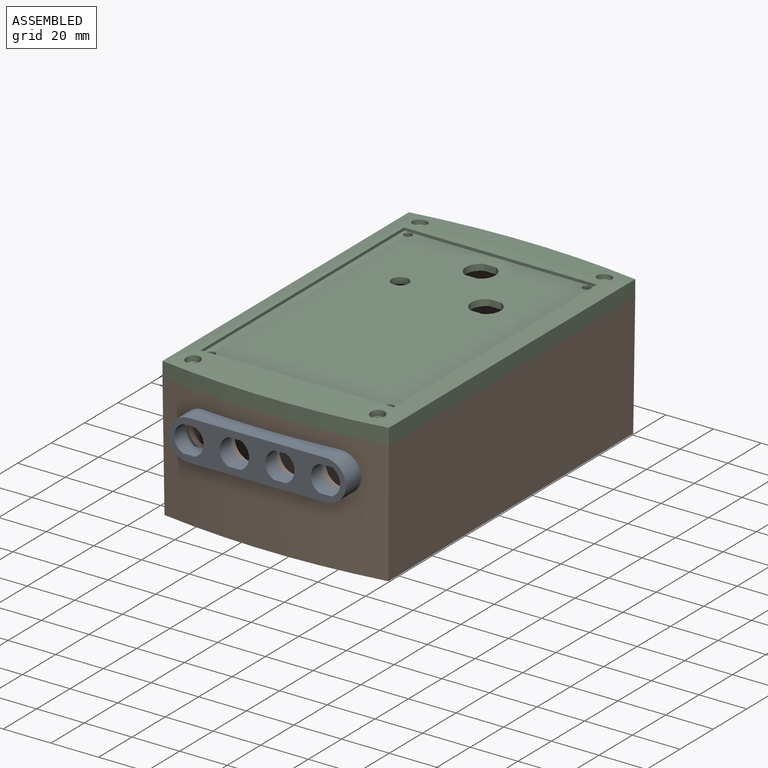
[diagram: assembled view]
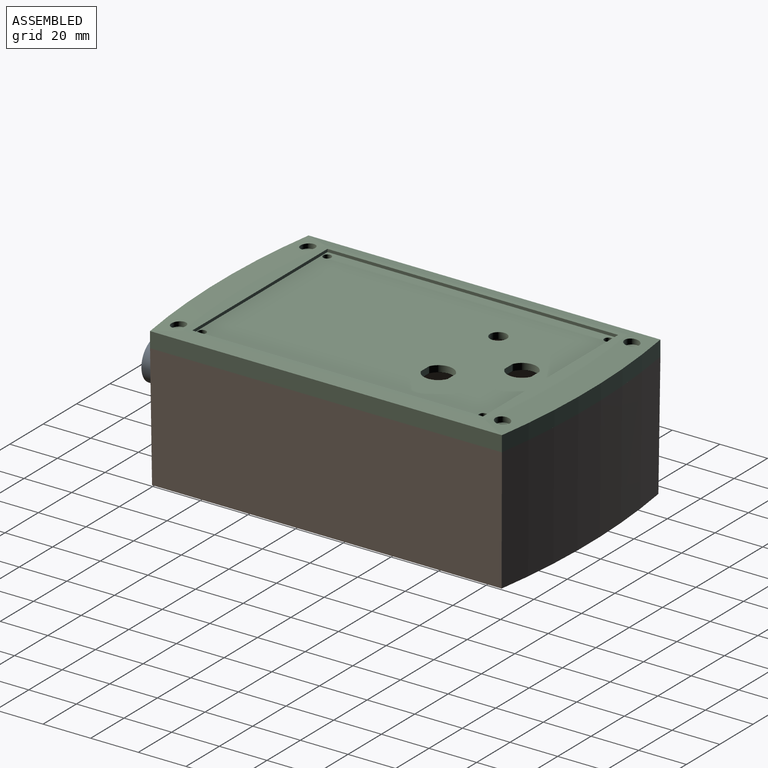
[diagram: assembled view, second angle]
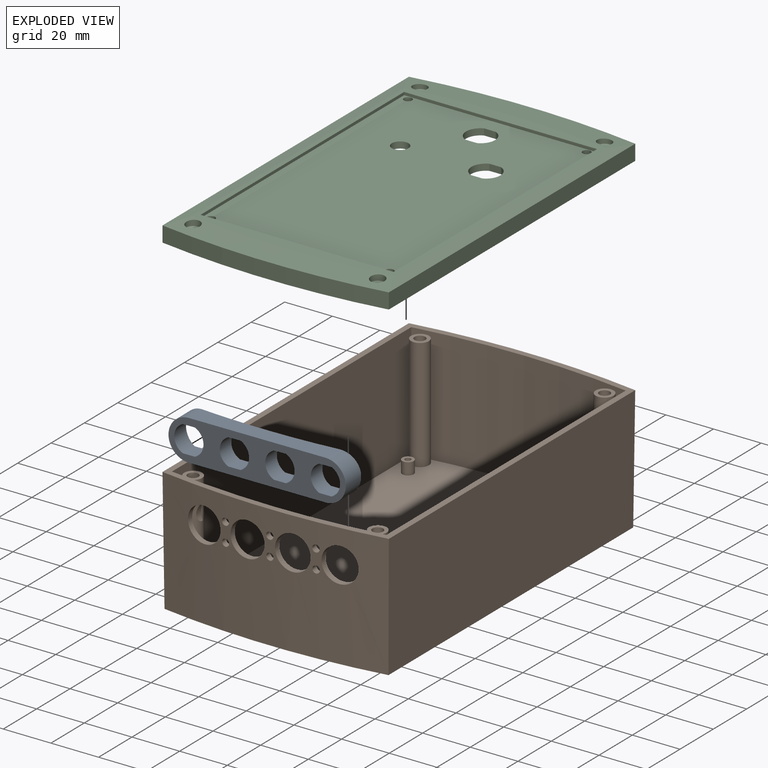
[diagram: exploded view]
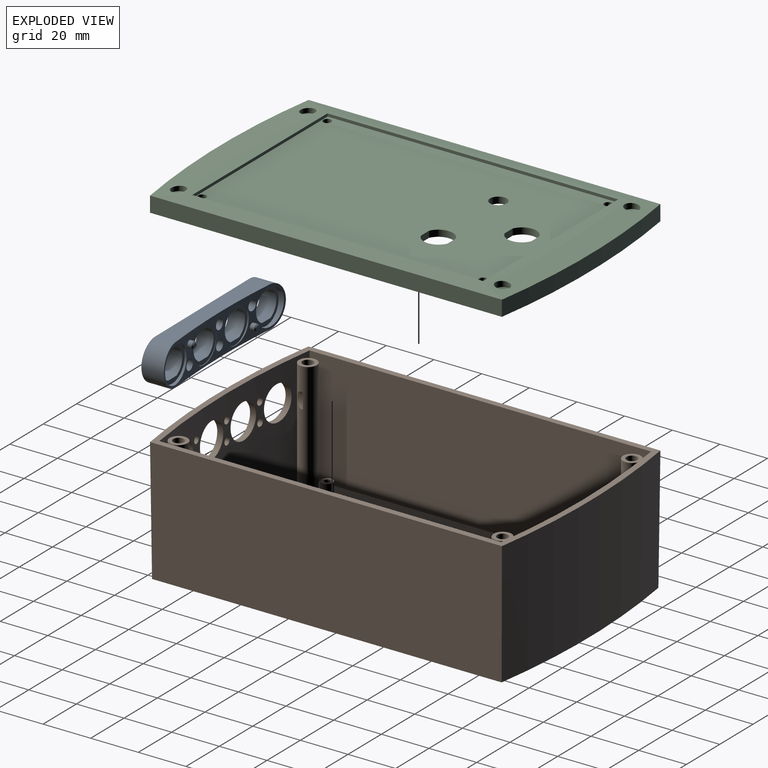
[diagram: exploded view, second angle]
FCSTD DOCUMENT  (FreeCAD 1.0R39285 (Git))
Label: 00_bat_source
License: All rights reserved
LicenseURL: https://en.wikipedia.org/wiki/All_rights_reserved
objects: App::FeaturePython×6, App::Link×3, Assembly::JointGroup×1, Assembly::AssemblyObject×1
EXTERNAL_REF file=CBOX11004.FCStd obj=Body
EXTERNAL_REF file=Lid_CSACTT004.FCStd obj=Body
EXTERNAL_REF file=Holder_Banana_Plugs.FCStd obj=Body_0

FEATURE [App::Link] K__rper  label="Körper"
  LinkedObject = -> <external CBOX11004.FCStd>#Body
FEATURE [App::FeaturePython] GroundedJoint  # Assembly grounded joint (typed FeaturePython)
  ObjectToGround = -> K__rper
FEATURE [App::Link] K__rper001  label="Körper001"
  LinkPlacement = pos=(1e-15,3.5e-15,52) rot=(0,0,1;3.14159rad)
  LinkedObject = -> <external Lid_CSACTT004.FCStd>#Body
  Placement = pos=(1e-15,3.5e-15,52) rot=(0,0,1;3.14159rad)
FEATURE [App::FeaturePython] Joint  label="Distance"  # Assembly joint (typed FeaturePython)
  Activated = true
  AngleMax = 0
  AngleMin = 0
  Detach1 = false
  Detach2 = false
  Distance = 0
  Distance2 = 0
  EnableAngleMax = false
  EnableAngleMin = false
  EnableLengthMax = false
  EnableLengthMin = false
  JointType = 5 (Distance)
  LengthMax = 0
  LengthMin = 0
  Placement1 = pos=(-4.93e-14,-2.14e-14,0) rot=(0,0,1;0rad)
  Placement2 = pos=(-3.339e-13,-2.399e-13,52) rot=(0,0,1;0rad)
  Reference1 = -> Assembly [K__rper001.Face5,K__rper001.Edge5]
  Reference2 = -> Assembly [K__rper.Face4,K__rper.Vertex32]
FEATURE [App::FeaturePython] Joint001  label="Cylindrical"  # Assembly joint (typed FeaturePython)
  Activated = true
  AngleMax = 0
  AngleMin = 0
  Detach1 = false
  Detach2 = false
  Distance = 0
  Distance2 = 0
  EnableAngleMax = false
  EnableAngleMin = false
  EnableLengthMax = false
  EnableLengthMin = false
  JointType = 2 (Cylindrical)
  LengthMax = 0
  LengthMin = 0
  Placement1 = pos=(-38.75,68,6.07742) rot=(0,0,1;0rad)
  Placement2 = pos=(38.75,-68,50.8) rot=(0,0,1;0rad)
  Reference1 = -> Assembly [K__rper001.Face31,K__rper001.Face31]
  Reference2 = -> Assembly [K__rper.Edge110,K__rper.Edge110]
FEATURE [App::FeaturePython] Joint002  label="Cylindrical001"  # Assembly joint (typed FeaturePython)
  Activated = true
  AngleMax = 0
  AngleMin = 0
  Detach1 = false
  Detach2 = false
  Distance = 0
  Distance2 = 0
  EnableAngleMax = false
  EnableAngleMin = false
  EnableLengthMax = false
  EnableLengthMin = false
  JointType = 2 (Cylindrical)
  LengthMax = 0
  LengthMin = 0
  Placement1 = pos=(38.75,-68,6.07742) rot=(0,0,1;0rad)
  Placement2 = pos=(-38.75,68,50.8) rot=(0,0,1;0rad)
  Reference1 = -> Assembly [K__rper001.Face9,K__rper001.Face9]
  Reference2 = -> Assembly [K__rper.Edge115,K__rper.Edge115]
FEATURE [App::Link] Body_0
  LinkPlacement = pos=(-0.590167,-0.563015,23.6934) rot=(0.709881,-0.704322,0;3.14159rad)
  LinkedObject = -> <external Holder_Banana_Plugs.FCStd>#Body_0
  Placement = pos=(-0.590167,-0.563015,23.6934) rot=(0.709881,-0.704322,0;3.14159rad)
FEATURE [App::FeaturePython] Joint003  label="Cylindrical002"  # Assembly joint (typed FeaturePython)
  Activated = true
  AngleMax = 0
  AngleMin = 0
  Detach1 = false
  Detach2 = false
  Distance = 0
  Distance2 = 0
  EnableAngleMax = true
  EnableAngleMin = true
  EnableLengthMax = false
  EnableLengthMin = false
  JointType = 2 (Cylindrical)
  LengthMax = 0
  LengthMin = 0
  Placement1 = pos=(75,-19,-18.1426) rot=(0,1,0;1.5708rad)
  Placement2 = pos=(19,-75.5607,41.836) rot=(1,0,0;1.5708rad)
  Reference1 = -> Assembly [Body_0.Face1,Body_0.Edge2]
  Reference2 = -> Assembly [K__rper.Face16,K__rper.Face16]
FEATURE [App::FeaturePython] Joint004  label="Cylindrical003"  # Assembly joint (typed FeaturePython)
  Activated = true
  AngleMax = 0
  AngleMin = 0
  Detach1 = false
  Detach2 = false
  Distance = 0
  Distance2 = 0
  EnableAngleMax = true
  EnableAngleMin = true
  EnableLengthMax = false
  EnableLengthMin = false
  JointType = 2 (Cylindrical)
  LengthMax = 0
  LengthMin = 0
  Placement1 = pos=(-19,-75.4788,33.836) rot=(1,0,0;1.5708rad)
  Placement2 = pos=(75,19,-10.1426) rot=(0,1,0;1.5708rad)
  Reference1 = -> Assembly [K__rper.Face7,K__rper.Face7]
  Reference2 = -> Assembly [Body_0.Face18,Body_0.Edge2]
FEATURE [Assembly::JointGroup] Joints
  Group = -> [GroundedJoint,Joint,Joint001,Joint002,Joint003,Joint004]
FEATURE [Assembly::AssemblyObject] Assembly
  Group = -> [Joints,K__rper,GroundedJoint,K__rper001,Joint,Joint001,Joint002,Body_0,Joint003,Joint004]
  Origin = -> Origin
  Type = Assembly

RESOLVED EXTERNAL PARTS (link-assembly join: the EXTERNAL_REF files above that resolve inside this repo's crawl, each included once):
---- part CBOX11004.FCStd = doc fcstd_95880fd9422a ----
FCSTD DOCUMENT  (FreeCAD 1.0R39285 (Git))
Label: CBOX11004
License: All rights reserved
LicenseURL: https://en.wikipedia.org/wiki/All_rights_reserved
objects: Sketcher::SketchObject×7, PartDesign::Pad×2, PartDesign::Plane×1, PartDesign::AdditiveLoft×1, PartDesign::SubtractiveLoft×1, PartDesign::Pocket×1, PartDesign::Body×1
note: 31 computed .brp shape members not serialized (recipe doc carries the construction recipe); baked Part::Feature solids carry a one-line shape summary decoded from their .brp

FEATURE [Sketcher::SketchObject] Sketch
  ArcFitTolerance = 1e-06
  AttachmentSupport = -> [XY_Plane]
  FullyConstrained = true
  MakeInternals = false
  MapMode = 5
  sketch-geometry (10):
    g0: LineSegment StartX=-47 StartY=73.35 StartZ=0 EndX=-47 EndY=-73.35 EndZ=0
    g1: LineSegment [constr] StartX=-47 StartY=-73.35 StartZ=0 EndX=47 EndY=-73.35 EndZ=0
    g2: LineSegment StartX=47 StartY=-73.35 StartZ=0 EndX=47 EndY=73.35 EndZ=0
    g3: LineSegment [constr] StartX=47 StartY=73.35 StartZ=0 EndX=-47 EndY=73.35 EndZ=0
    g4: LineSegment [constr] StartX=-47 StartY=73.35 StartZ=0 EndX=47 EndY=-73.35 EndZ=0
    g5: LineSegment [constr] StartX=47 StartY=73.35 StartZ=0 EndX=-47 EndY=-73.35 EndZ=0
    g6: ArcOfCircle CenterX=-9.23e-14 CenterY=-227.428 CenterZ=0 NormalX=0 NormalY=0 NormalZ=1 AngleXU=0 Radius=304.428 StartAngle=1.41579 EndAngle=1.7258
    g7: ArcOfCircle CenterX=-8.03e-14 CenterY=227.428 CenterZ=0 NormalX=0 NormalY=0 NormalZ=1 AngleXU=0 Radius=304.428 StartAngle=4.55738 EndAngle=4.8674
    g8: GeomPoint X=0 Y=77 Z=0
    g9: GeomPoint X=0 Y=-77 Z=0
  constraints (26):
    c: Coincident(g0,g1)
    c: Coincident(g1,g2)
    c: Coincident(g2,g3)
    c: Coincident(g3,g0)
    c: Vertical(g0)
    c: Vertical(g2)
    c: Horizontal(g1)
    c: Horizontal(g3)
    c: Coincident(g4,g0)
    c: Coincident(g4,g1)
    c: Coincident(g5,g2)
    c: Coincident(g5,g0)
    c: PointOnObject(g-1,g4)
    c: PointOnObject(g-1,g5)
    c: Distance(g2,g0) = 94
    c: Coincident(g6,g0)
    c: Coincident(g6,g2)
    c: Coincident(g7,g0)
    c: Coincident(g7,g1)
    c: Equal(g6,g7)
    c: PointOnObject(g8,g6)
    c: PointOnObject(g9,g7)
    c: PointOnObject(g9,g-2)
    c: PointOnObject(g8,g-2)
    c: DistanceY(g9,g8) = 154
    c: DistanceY(g2,g2) = 146.7
FEATURE [PartDesign::Plane] DatumPlane
  AttachmentOffset = pos=(0,0,52) rot=(0,0,1;0rad)
  AttachmentSupport = -> [Sketch]
  Length = 119.263
  MapMode = 2
  Placement = pos=(0,0,52) rot=(0,0,1;0rad)
  ResizeMode = 0
  Width = 179.189
FEATURE [Sketcher::SketchObject] Sketch001
  ArcFitTolerance = 1e-06
  AttachmentSupport = -> [DatumPlane]
  FullyConstrained = true
  MakeInternals = false
  MapMode = 5
  Placement = pos=(0,0,52) rot=(0,0,1;0rad)
  sketch-geometry (10):
    g0: LineSegment [constr] StartX=-47.5 StartY=-73.85 StartZ=0 EndX=47.5 EndY=-73.85 EndZ=0
    g1: LineSegment StartX=47.5 StartY=-73.85 StartZ=0 EndX=47.5 EndY=73.85 EndZ=0
    g2: LineSegment [constr] StartX=47.5 StartY=73.85 StartZ=0 EndX=-47.5 EndY=73.85 EndZ=0
    g3: LineSegment StartX=-47.5 StartY=73.85 StartZ=0 EndX=-47.5 EndY=-73.85 EndZ=0
    g4: LineSegment [constr] StartX=-47.5 StartY=73.85 StartZ=0 EndX=47.5 EndY=-73.85 EndZ=0
    g5: LineSegment [constr] StartX=-47.5 StartY=-73.85 StartZ=0 EndX=47.5 EndY=73.85 EndZ=0
    g6: ArcOfCircle CenterX=-1.84e-14 CenterY=-233.4 CenterZ=0 NormalX=0 NormalY=0 NormalZ=1 AngleXU=0 Radius=310.9 StartAngle=1.41741 EndAngle=1.72418
    g7: ArcOfCircle CenterX=5.84e-14 CenterY=233.4 CenterZ=0 NormalX=0 NormalY=0 NormalZ=1 AngleXU=0 Radius=310.9 StartAngle=4.55901 EndAngle=4.86577
    g8: GeomPoint X=0 Y=77.5 Z=0
    g9: GeomPoint X=0 Y=-77.5 Z=0
  constraints (26):
    c: Coincident(g0,g1)
    c: Coincident(g1,g2)
    c: Coincident(g2,g3)
    c: Coincident(g3,g0)
    c: Horizontal(g0)
    c: Horizontal(g2)
    c: Vertical(g1)
    c: Vertical(g3)
    c: Coincident(g4,g2)
    c: Coincident(g4,g0)
    c: Coincident(g5,g0)
    c: Coincident(g5,g1)
    c: PointOnObject(g-1,g4)
    c: PointOnObject(g-1,g5)
    c: Coincident(g6,g2)
    c: Coincident(g6,g1)
    c: Coincident(g7,g0)
    c: Coincident(g7,g0)
    c: Equal(g7,g6)
    c: PointOnObject(g8,g6)
    c: PointOnObject(g9,g7)
    c: PointOnObject(g9,g-2)
    c: PointOnObject(g8,g-2)
    c: DistanceY(g9,g8) = 155
    c: DistanceY(g1,g1) = 147.7
    c: Distance(g3,g1) = 95
FEATURE [PartDesign::AdditiveLoft] AdditiveLoft
  Closed = false
  Profile = -> Sketch
  Refine = true
  Ruled = false
  Sections = -> [Sketch001]
  Suppressed = false
FEATURE [Sketcher::SketchObject] Sketch002
  ArcFitTolerance = 1e-06
  AttachmentOffset = pos=(0,0,3.7) rot=(0,0,1;0rad)
  AttachmentSupport = -> [XY_Plane]
  ExternalGeometry = -> [Sketch]
  FullyConstrained = true
  MakeInternals = false
  MapMode = 5
  Placement = pos=(0,0,3.7) rot=(0,0,1;0rad)
  sketch-geometry (11):
    g0: LineSegment [constr] StartX=-47 StartY=73.35 StartZ=0 EndX=-47 EndY=-73.35 EndZ=0
    g1: LineSegment [constr] StartX=47 StartY=73.35 StartZ=0 EndX=47 EndY=-73.35 EndZ=0
    g2: ArcOfCircle [constr] CenterX=-7.85e-14 CenterY=227.428 CenterZ=0 NormalX=0 NormalY=0 NormalZ=1 AngleXU=0 Radius=304.428 StartAngle=4.55738 EndAngle=4.8674
    g3: ArcOfCircle CenterX=-7.85e-14 CenterY=227.428 CenterZ=0 NormalX=0 NormalY=0 NormalZ=1 AngleXU=0 Radius=301.928 StartAngle=4.56446 EndAngle=4.86031
    g4: LineSegment StartX=44.5 StartY=71.2027 StartZ=0 EndX=44.5 EndY=-71.2027 EndZ=0
    g5: ArcOfCircle CenterX=-9.23e-14 CenterY=-227.428 CenterZ=0 NormalX=0 NormalY=0 NormalZ=1 AngleXU=0 Radius=301.928 StartAngle=1.42287 EndAngle=1.71872
    g6: LineSegment StartX=-44.5 StartY=71.2027 StartZ=0 EndX=-44.5 EndY=-71.2027 EndZ=0
    g7: GeomPoint X=0 Y=77 Z=0
    g8: GeomPoint X=0 Y=74.5 Z=0
    g9: GeomPoint X=0 Y=-74.5 Z=0
    g10: GeomPoint X=0 Y=-77 Z=0
  constraints (27):
    c: Coincident(g0,g-5)
    c: Coincident(g0,g-6)
    c: Coincident(g1,g-4)
    c: Coincident(g1,g-6)
    c: Coincident(g2,g0)
    c: Coincident(g2,g1)
    c: Equal(g2,g-6)
    c: Coincident(g3,g4)
    c: Coincident(g3,g6)
    c: Coincident(g4,g5)
    c: Coincident(g5,g6)
    c: Coincident(g2,g3)
    c: Parallel(g0,g6)
    c: Parallel(g4,g1)
    c: Distance(g0,g6) = 2.5
    c: Distance(g1,g4) = 2.5
    c: PointOnObject(g8,g5)
    c: PointOnObject(g9,g3)
    c: PointOnObject(g10,g2)
    c: PointOnObject(g10,g-2)
    c: PointOnObject(g9,g-2)
    c: PointOnObject(g8,g-2)
    c: PointOnObject(g7,g-3)
    c: PointOnObject(g7,g-2)
    c: DistanceY(g8,g7) = 2.5
    c: DistanceY(g10,g9) = 2.5
    c: Coincident(g5,g-3)
FEATURE [Sketcher::SketchObject] Sketch003
  ArcFitTolerance = 1e-06
  AttachmentSupport = -> [DatumPlane]
  ExternalGeometry = -> [Sketch001]
  FullyConstrained = true
  MakeInternals = false
  MapMode = 5
  Placement = pos=(0,0,52) rot=(0,0,1;0rad)
  sketch-geometry (11):
    g0: ArcOfCircle [constr] CenterX=1.3e-13 CenterY=-233.4 CenterZ=0 NormalX=0 NormalY=0 NormalZ=1 AngleXU=0 Radius=310.9 StartAngle=1.41741 EndAngle=1.72418
    g1: ArcOfCircle [constr] CenterX=-4.15e-14 CenterY=233.4 CenterZ=0 NormalX=0 NormalY=0 NormalZ=1 AngleXU=0 Radius=310.9 StartAngle=4.55901 EndAngle=4.86577
    g2: LineSegment [constr] StartX=-47.5 StartY=73.85 StartZ=0 EndX=-47.5 EndY=-73.85 EndZ=0
    g3: LineSegment [constr] StartX=47.5 StartY=-73.85 StartZ=0 EndX=47.5 EndY=73.85 EndZ=0
    g4: LineSegment StartX=45 StartY=-71.6993 StartZ=0 EndX=45 EndY=71.6993 EndZ=0
    g5: ArcOfCircle CenterX=1.3e-13 CenterY=-233.4 CenterZ=0 NormalX=0 NormalY=0 NormalZ=1 AngleXU=0 Radius=308.4 StartAngle=1.42436 EndAngle=1.71723
    g6: LineSegment StartX=-45 StartY=71.6993 StartZ=0 EndX=-45 EndY=-71.6993 EndZ=0
    g7: ArcOfCircle CenterX=-4.15e-14 CenterY=233.4 CenterZ=0 NormalX=0 NormalY=0 NormalZ=1 AngleXU=0 Radius=308.4 StartAngle=4.56595 EndAngle=4.85883
    g8: GeomPoint X=0 Y=75 Z=0
    g9: GeomPoint X=0 Y=77.5 Z=0
    g10: GeomPoint X=0 Y=-75 Z=0
  constraints (28):
    c: Coincident(g0,g-7)
    c: Coincident(g0,g-4)
    c: Coincident(g1,g-7)
    c: Coincident(g1,g-6)
    c: Coincident(g2,g0)
    c: Coincident(g2,g1)
    c: Coincident(g3,g1)
    c: Coincident(g3,g0)
    c: Coincident(g-3,g0)
    c: Coincident(g1,g-6)
    c: Coincident(g4,g5)
    c: Coincident(g4,g7)
    c: Coincident(g5,g6)
    c: Coincident(g6,g7)
    c: Parallel(g2,g6)
    c: Parallel(g4,g3)
    c: Coincident(g7,g1)
    c: Coincident(g5,g0)
    c: Distance(g2,g6) = 2.5
    c: Distance(g3,g4) = 2.5
    c: PointOnObject(g8,g5)
    c: PointOnObject(g9,g0)
    c: PointOnObject(g10,g7)
    c: PointOnObject(g10,g-2)
    c: PointOnObject(g8,g-2)
    c: PointOnObject(g9,g-2)
    c: DistanceY(g8,g9) = 2.5
    c: DistanceY(g-5,g10) = 2.5
FEATURE [PartDesign::SubtractiveLoft] SubtractiveLoft
  BaseFeature = -> AdditiveLoft
  Closed = false
  Profile = -> Sketch002
  Refine = true
  Ruled = false
  Sections = -> [Sketch003]
  Suppressed = false
FEATURE [Sketcher::SketchObject] Sketch004
  ArcFitTolerance = 1e-06
  AttachmentSupport = -> [XY_Plane]
  FullyConstrained = true
  MakeInternals = false
  MapMode = 5
  sketch-geometry (14):
    g0: LineSegment [constr] StartX=-37.5 StartY=-59 StartZ=0 EndX=37.5 EndY=-59 EndZ=0
    g1: LineSegment [constr] StartX=37.5 StartY=-59 StartZ=0 EndX=37.5 EndY=59 EndZ=0
    g2: LineSegment [constr] StartX=37.5 StartY=59 StartZ=0 EndX=-37.5 EndY=59 EndZ=0
    g3: LineSegment [constr] StartX=-37.5 StartY=59 StartZ=0 EndX=-37.5 EndY=-59 EndZ=0
    g4: LineSegment [constr] StartX=-37.5 StartY=59 StartZ=0 EndX=37.5 EndY=-59 EndZ=0
    g5: LineSegment [constr] StartX=-37.5 StartY=-59 StartZ=0 EndX=37.5 EndY=59 EndZ=0
    g6: Circle CenterX=-37.5 CenterY=59 CenterZ=0 NormalX=0 NormalY=0 NormalZ=1 AngleXU=0 Radius=2.4
    g7: Circle CenterX=37.5 CenterY=59 CenterZ=0 NormalX=0 NormalY=0 NormalZ=1 AngleXU=0 Radius=2.4
    g8: Circle CenterX=37.5 CenterY=-59 CenterZ=0 NormalX=0 NormalY=0 NormalZ=1 AngleXU=0 Radius=2.4
    g9: Circle CenterX=-37.5 CenterY=-59 CenterZ=0 NormalX=0 NormalY=0 NormalZ=1 AngleXU=0 Radius=2.4
    g10: Circle CenterX=-37.5 CenterY=-59 CenterZ=0 NormalX=0 NormalY=0 NormalZ=1 AngleXU=0 Radius=1.25
    g11: Circle CenterX=37.5 CenterY=-59 CenterZ=0 NormalX=0 NormalY=0 NormalZ=1 AngleXU=0 Radius=1.25
    g12: Circle CenterX=37.5 CenterY=59 CenterZ=0 NormalX=0 NormalY=0 NormalZ=1 AngleXU=0 Radius=1.25
    g13: Circle CenterX=-37.5 CenterY=59 CenterZ=0 NormalX=0 NormalY=0 NormalZ=1 AngleXU=0 Radius=1.25
  constraints (32):
    c: Coincident(g0,g1)
    c: Coincident(g1,g2)
    c: Coincident(g2,g3)
    c: Coincident(g3,g0)
    c: Horizontal(g0)
    c: Horizontal(g2)
    c: Vertical(g1)
    c: Vertical(g3)
    c: Coincident(g4,g2)
    c: Coincident(g4,g0)
    c: Coincident(g5,g0)
    c: Coincident(g5,g1)
    c: PointOnObject(g-1,g4)
    c: PointOnObject(g-1,g5)
    c: DistanceY(g1,g1) = 118
    c: DistanceX(g0,g0) = 75
    c: Coincident(g7,g1)
    c: Coincident(g8,g0)
    c: Coincident(g9,g0)
    c: Coincident(g10,g0)
    c: Coincident(g11,g0)
    c: Coincident(g13,g6)
    c: Coincident(g12,g1)
    c: Equal(g6,g7)
    c: Equal(g13,g12)
    c: Equal(g12,g11)
    c: Equal(g10,g11)
    c: Equal(g8,g9)
    c: Diameter(g6) = 4.8
    c: Diameter(g12) = 2.5
    c: Coincident(g6,g2)
    c: Equal(g8,g7)
FEATURE [PartDesign::Pad] Pad
  BaseFeature = -> SubtractiveLoft
  Direction = (0,0,1)
  Length = 8.7
  Length2 = 10
  Profile = -> Sketch004
  ReferenceAxis = -> Sketch004 [N_Axis]
  Refine = true
  Suppressed = false
  Type = 0
FEATURE [Sketcher::SketchObject] Sketch005
  ArcFitTolerance = 1e-06
  AttachmentSupport = -> [XY_Plane]
  FullyConstrained = true
  MakeInternals = false
  MapMode = 5
  sketch-geometry (14):
    g0: LineSegment [constr] StartX=-38.75 StartY=68 StartZ=0 EndX=-38.75 EndY=-68 EndZ=0
    g1: LineSegment [constr] StartX=-38.75 StartY=-68 StartZ=0 EndX=38.75 EndY=-68 EndZ=0
    g2: LineSegment [constr] StartX=38.75 StartY=-68 StartZ=0 EndX=38.75 EndY=68 EndZ=0
    g3: LineSegment [constr] StartX=38.75 StartY=68 StartZ=0 EndX=-38.75 EndY=68 EndZ=0
    g4: LineSegment [constr] StartX=-38.75 StartY=68 StartZ=0 EndX=38.75 EndY=-68 EndZ=0
    g5: LineSegment [constr] StartX=-38.75 StartY=-68 StartZ=0 EndX=38.75 EndY=68 EndZ=0
    g6: Circle CenterX=38.75 CenterY=-68 CenterZ=0 NormalX=0 NormalY=0 NormalZ=1 AngleXU=0 Radius=3.75
    g7: Circle CenterX=-38.75 CenterY=-68 CenterZ=0 NormalX=0 NormalY=0 NormalZ=1 AngleXU=0 Radius=3.75
    g8: Circle CenterX=-38.75 CenterY=-68 CenterZ=0 NormalX=0 NormalY=0 NormalZ=1 AngleXU=0 Radius=2.25
    g9: Circle CenterX=38.75 CenterY=-68 CenterZ=0 NormalX=0 NormalY=0 NormalZ=1 AngleXU=0 Radius=2.25
    g10: Circle CenterX=38.75 CenterY=68 CenterZ=0 NormalX=0 NormalY=0 NormalZ=1 AngleXU=0 Radius=2.25
    g11: Circle CenterX=38.75 CenterY=68 CenterZ=0 NormalX=0 NormalY=0 NormalZ=1 AngleXU=0 Radius=3.75
    g12: Circle CenterX=-38.75 CenterY=68 CenterZ=0 NormalX=0 NormalY=0 NormalZ=1 AngleXU=0 Radius=3.75
    g13: Circle CenterX=-38.75 CenterY=68 CenterZ=0 NormalX=0 NormalY=0 NormalZ=1 AngleXU=0 Radius=2.25
  constraints (32):
    c: Coincident(g0,g1)
    c: Coincident(g1,g2)
    c: Coincident(g2,g3)
    c: Coincident(g3,g0)
    c: Vertical(g0)
    c: Vertical(g2)
    c: Horizontal(g1)
    c: Horizontal(g3)
    c: Coincident(g4,g0)
    c: Coincident(g4,g1)
    c: Coincident(g5,g2)
    c: Coincident(g5,g0)
    c: PointOnObject(g-1,g5)
    c: PointOnObject(g-1,g4)
    c: DistanceY(g2,g2) = 136
    c: DistanceX(g1,g1) = 77.5
    c: Coincident(g6,g1)
    c: Coincident(g7,g0)
    c: Coincident(g8,g0)
    c: Coincident(g9,g1)
    c: Coincident(g10,g2)
    c: Coincident(g11,g2)
    c: Coincident(g12,g0)
    c: Coincident(g13,g0)
    c: Equal(g13,g10)
    c: Equal(g10,g9)
    c: Equal(g9,g8)
    c: Equal(g7,g6)
    c: Equal(g6,g11)
    c: Equal(g11,g12)
    c: Diameter(g10) = 4.5
    c: Diameter(g11) = 7.5
FEATURE [PartDesign::Pad] Pad001
  BaseFeature = -> Pad
  Direction = (0,0,1)
  Length = 50.8
  Length2 = 10
  Profile = -> Sketch005
  ReferenceAxis = -> Sketch005 [N_Axis]
  Refine = true
  Suppressed = false
  Type = 0
FEATURE [Sketcher::SketchObject] Sketch006
  ArcFitTolerance = 1e-06
  AttachmentOffset = pos=(0,0,77.5) rot=(0,0,1;0rad)
  AttachmentSupport = -> [XZ_Plane]
  FullyConstrained = true
  MakeInternals = false
  MapMode = 5
  Placement = pos=(0,-77.5,1.72e-14) rot=(1,0,0;1.5708rad)
  sketch-geometry (15):
    g0: Circle CenterX=-28.5 CenterY=37.836 CenterZ=0 NormalX=0 NormalY=0 NormalZ=1 AngleXU=0 Radius=7.3
    g1: Circle CenterX=-9.5 CenterY=37.836 CenterZ=0 NormalX=0 NormalY=0 NormalZ=1 AngleXU=0 Radius=7.3
    g2: Circle CenterX=9.5 CenterY=37.836 CenterZ=0 NormalX=0 NormalY=0 NormalZ=1 AngleXU=0 Radius=7.3
    g3: Circle CenterX=28.5 CenterY=37.836 CenterZ=0 NormalX=0 NormalY=0 NormalZ=1 AngleXU=0 Radius=7.3
    g4: LineSegment [constr] StartX=-9.5 StartY=37.836 StartZ=0 EndX=9.5 EndY=37.836 EndZ=0
    g5: LineSegment [constr] StartX=9.5 StartY=37.836 StartZ=0 EndX=28.5 EndY=37.836 EndZ=0
    g6: LineSegment [constr] StartX=-9.5 StartY=37.836 StartZ=0 EndX=-28.5 EndY=37.836 EndZ=0
    g7: GeomPoint X=0 Y=37.836 Z=0
    g8: Circle CenterX=-19 CenterY=41.836 CenterZ=0 NormalX=0 NormalY=0 NormalZ=1 AngleXU=0 Radius=1.5
    g9: Circle CenterX=-19 CenterY=33.836 CenterZ=0 NormalX=0 NormalY=0 NormalZ=1 AngleXU=0 Radius=1.5
    g10: Circle CenterX=19 CenterY=41.836 CenterZ=0 NormalX=0 NormalY=0 NormalZ=1 AngleXU=0 Radius=1.5
    g11: Circle CenterX=19 CenterY=33.836 CenterZ=0 NormalX=0 NormalY=0 NormalZ=1 AngleXU=0 Radius=1.5
    g12: Circle CenterX=0 CenterY=33.836 CenterZ=0 NormalX=0 NormalY=0 NormalZ=1 AngleXU=0 Radius=1.5
    g13: Circle CenterX=-1e-16 CenterY=41.836 CenterZ=0 NormalX=0 NormalY=0 NormalZ=1 AngleXU=0 Radius=1.5
    g14: GeomPoint X=-19 Y=37.836 Z=0
  constraints (34):
    c: Coincident(g4,g1)
    c: Coincident(g4,g2)
    c: Horizontal(g4)
    c: Coincident(g5,g2)
    c: Coincident(g5,g3)
    c: Horizontal(g5)
    c: Coincident(g6,g1)
    c: Coincident(g6,g0)
    c: Equal(g4,g6)
    c: Equal(g4,g5)
    c: Horizontal(g6)
    c: PointOnObject(g7,g-2)
    c: Symmetric(g1,g2,g7)
    c: Equal(g0,g1)
    c: Equal(g1,g2)
    c: Equal(g2,g3)
    c: DistanceX(g4,g4) = 19
    c: Diameter(g3) = 14.6
    c: PointOnObject(g12,g-2)
    c: Symmetric(g8,g11,g7)
    c: Symmetric(g9,g10,g7)
    c: Symmetric(g9,g11,g12)
    c: Symmetric(g8,g10,g13)
    c: Horizontal(g9,g11)
    c: Equal(g8,g13)
    c: Equal(g13,g10)
    c: Equal(g11,g10)
    c: Equal(g11,g12)
    c: Equal(g12,g9)
    c: DistanceY(g-1,g7) = 37.836
    c: DistanceY(g7,g10) = 4
    c: Diameter(g10) = 3
    c: Symmetric(g6,g6,g14)
    c: Vertical(g8,g14)
FEATURE [PartDesign::Pocket] Pocket
  BaseFeature = -> Pad001
  Direction = (0,1,-2e-16)
  Length = 10
  Length2 = 5
  Profile = -> Sketch006
  ReferenceAxis = -> Sketch006 [N_Axis]
  Refine = true
  Suppressed = false
  Type = 0
FEATURE [PartDesign::Body] Body  label="Körper"
  AllowCompound = false
  Group = -> [Sketch,DatumPlane,Sketch001,AdditiveLoft,Sketch002,Sketch003,SubtractiveLoft,Sketch004,Pad,Sketch005,Pad001,Sketch006,Pocket]
  Origin = -> Origin
  Tip = -> Pocket
---- part Holder_Banana_Plugs.FCStd = doc fcstd_0134e4366354 ----
FCSTD DOCUMENT  (FreeCAD 1.0R39285 (Git))
Label: Holder_Banana_Plugs
License: All rights reserved
LicenseURL: https://en.wikipedia.org/wiki/All_rights_reserved
objects: Sketcher::SketchObject×9, PartDesign::Hole×2, PartDesign::Pad×2, Spreadsheet::Sheet×1, App::DocumentObjectGroup×1, Part::Extrusion×1, PartDesign::FeatureBase×1, PartDesign::Pocket×1, PartDesign::SubtractiveLoft×1, PartDesign::Chamfer×1, PartDesign::Body×1
note: 43 computed .brp shape members not serialized (recipe doc carries the construction recipe); baked Part::Feature solids carry a one-line shape summary decoded from their .brp

FEATURE [Spreadsheet::Sheet] Parameters
  cells = A1='Parameter; B1='Value; C1='Fromula; D1='Tolerance; E1='Comment; A2='d0; B2(d0_)=14.6; C2='14.6mm; A3='d1; B3(d1_)=14.143; C3='14.143mm; A4='d10; B4(d10_)=57; C4='57mm; A5='d12; B5(d12_)=5; C5='5mm; A6='d13; B6(d13_)=118; C6='118°; A7='d17; B7(d17_)=10; C7='10mm; A8='d18; B8(d18_)=0; C8='0°; A9='d2; B9(d2_)=19; C9='19mm; A10='d20; B10(d20_)=12.2; C10='12.2mm; A11='d21; B11(d21_)=6; C11='6mm; A12='d22; B12(d22_)=4; C12='4mm; A13='d23; B13(d23_)=2; C13='2mm; A14='d24; B14(d24_)=90; C14='90°; A15='d25; B15(d25_)=8; C15='8mm; A16='d26; B16(d26_)=118; C16='118°; A17='d27; B17(d27_)=19; C17='19mm; A18='d28; B18(d28_)==-10; C18='-10mm; A19='d36; B19(d36_)=15.1; C19='15.1mm; A20='d37; B20(d37_)=3; C20='3mm; A21='d38; B21(d38_)=0; C21='0°; A22='d39; B22(d39_)=2.9; C22='2.9mm; A23='d40; B23(d40_)=4; C23='4mm; A24='d41; B24(d41_)=10; C24='10mm; A25='d42; B25(d42_)=0; C25='0°; A26='d43; B26(d43_)=0.5; C26='0.5mm; A27='d44; B27(d44_)=2; C27='2mm; A28='d45; B28(d45_)=45; C28='45°; A29='d46; B29(d46_)=11.1; C29='11.1mm; A30='d47; B30(d47_)=10; C30='10mm; A31='d48; B31(d48_)=0; C31='0°; A32='d49; B32(d49_)=4.2; C32='4.2mm; A33='d50; B33(d50_)=6; C33='6mm; A34='d51; B34(d51_)=6.3; C34='6.3mm; A35='d52; B35(d52_)=2; C35='2mm; A36='d53; B36(d53_)=90; C36='90°; A37='d54; B37(d54_)=7; C37='7mm; A38='d55; B38(d55_)=0; C38='0°; A39='d59; B39(d59_)=5.64257585306618; C39='5.64258mm; A40='d64; B40(d64_)=617.104; C40='617.104mm; A41='d65; B41(d65_)=315.75; C41='315.75mm; A42='d66; B42(d66_)=617.402; C42='617.402mm; A43='d67; B43(d67_)=0; C43='0; A44='d68; B44(d68_)=90; C44='90°; A45='d69; B45(d69_)=0; C45='0; A46='d7; B46(d7_)=15; C46='15mm; A47='d70; B47(d70_)=90; C47='90°; A48='d8; B48(d8_)=84.5; C48='84.5mm; A49='d9; B49(d9_)=8.5; C49='8.5mm
FEATURE [Sketcher::SketchObject] Sketch5
  ArcFitTolerance = 1e-06
  FullyConstrained = true
  MakeInternals = false
  Placement = pos=(84.5,0,0) rot=(0,1,0;1.5708rad)
  sketch-geometry (7):
    g0: LineSegment [constr] StartX=14.1426 StartY=28.5 StartZ=0 EndX=14.1426 EndY=9.5 EndZ=0
    g1: LineSegment [constr] StartX=14.1426 StartY=9.5 StartZ=0 EndX=14.1426 EndY=-9.5 EndZ=0
    g2: LineSegment [constr] StartX=14.1426 StartY=-9.5 StartZ=0 EndX=14.1426 EndY=-28.5 EndZ=0
    g3: Circle CenterX=14.1426 CenterY=28.5 CenterZ=0 NormalX=0 NormalY=0 NormalZ=1 AngleXU=0 Radius=6.1
    g4: Circle CenterX=14.1426 CenterY=9.5 CenterZ=0 NormalX=0 NormalY=0 NormalZ=1 AngleXU=0 Radius=6.1
    g5: Circle CenterX=14.1426 CenterY=-9.5 CenterZ=0 NormalX=0 NormalY=0 NormalZ=1 AngleXU=0 Radius=6.1
    g6: Circle CenterX=14.1426 CenterY=-28.5 CenterZ=0 NormalX=0 NormalY=0 NormalZ=1 AngleXU=0 Radius=6.1
  constraints (16):
    c: Equal(g2,g1)
    c: Equal(g1,g0)
    c: Vertical(g1)
    c: Vertical(g2)
    c: Coincident(g2,g1)
    c: Coincident(g1,g0)
    c: Coincident(g0,g-3)
    c: Coincident(g2,g-4)
    c: Coincident(g3,g0)
    c: Coincident(g4,g0)
    c: Coincident(g5,g1)
    c: Coincident(g6,g2)
    c: Equal(g3,g4)
    c: Equal(g4,g5)
    c: Equal(g5,g6)
    c: Diameter(g3) = 12.2
FEATURE [Sketcher::SketchObject] Hole3_bp
  ArcFitTolerance = 1e-06
  FullyConstrained = false
  MakeInternals = false
  Placement = pos=(74.5,-19,-18.1426) rot=(0,-1,0;1.5708rad)
  sketch-geometry (4):
    g0: Circle CenterX=8 CenterY=0 CenterZ=0 NormalX=0 NormalY=0 NormalZ=1 AngleXU=0 Radius=2.1
    g1: Circle CenterX=0 CenterY=19 CenterZ=0 NormalX=0 NormalY=0 NormalZ=1 AngleXU=0 Radius=2.1
    g2: Circle CenterX=8 CenterY=19 CenterZ=0 NormalX=0 NormalY=0 NormalZ=1 AngleXU=0 Radius=2.1
    g3: Circle CenterX=0 CenterY=38 CenterZ=0 NormalX=0 NormalY=0 NormalZ=1 AngleXU=0 Radius=2.1
FEATURE [Sketcher::SketchObject] Sketch1
  ArcFitTolerance = 1e-06
  FullyConstrained = true
  MakeInternals = false
  Placement = pos=(84.5,0,0) rot=(0,1,0;1.5708rad)
  expr: .Constraints.d10 = Parameters.d10_
  expr: .Constraints.d59 = Parameters.d59_
  expr: .Constraints.d9 = Parameters.d9_
  sketch-geometry (9):
    g0: LineSegment StartX=22.6426 StartY=-28.5 StartZ=0 EndX=5.64258 EndY=-28.5 EndZ=0
    g1: LineSegment StartX=5.64258 StartY=-28.5 StartZ=0 EndX=5.64258 EndY=28.5 EndZ=0
    g2: LineSegment StartX=5.64258 StartY=28.5 StartZ=0 EndX=22.6426 EndY=28.5 EndZ=0
    g3: LineSegment StartX=22.6426 StartY=28.5 StartZ=0 EndX=22.6426 EndY=-28.5 EndZ=0
    g4: LineSegment [constr] StartX=22.6426 StartY=-28.5 StartZ=0 EndX=5.64258 EndY=28.5 EndZ=0
    g5: LineSegment [constr] StartX=5.64258 StartY=-28.5 StartZ=0 EndX=22.6426 EndY=28.5 EndZ=0
    g6: ArcOfCircle CenterX=14.1426 CenterY=-28.5 CenterZ=0 NormalX=0 NormalY=0 NormalZ=1 AngleXU=0 Radius=8.5 StartAngle=3.14159 EndAngle=6.28319
    g7: ArcOfCircle CenterX=14.1426 CenterY=28.5 CenterZ=0 NormalX=0 NormalY=0 NormalZ=1 AngleXU=0 Radius=8.5 StartAngle=4.0561e-06 EndAngle=3.14159
    g8: GeomPoint X=14.1426 Y=0 Z=0
  constraints (24):
    c: Perpendicular(g0,g1)
    c: Parallel(g0,g2)
    c: Parallel(g1,g3)
    c: Horizontal(g0)
    c: Radius(g6) = 8.5  'd9'
    c: Distance(g1) = 57  'd10'
    c: Distance(g-1,g1) = 5.64258  'd59'
    c: Coincident(g0,g3)
    c: Coincident(g0,g4)
    c: Coincident(g0,g6)
    c: Coincident(g1,g2)
    c: Coincident(g1,g4)
    c: Coincident(g1,g7)
    c: Coincident(g0,g1)
    c: Coincident(g0,g5)
    c: Coincident(g0,g6)
    c: Coincident(g2,g3)
    c: Coincident(g2,g5)
    c: Coincident(g2,g7)
    c: PointOnObject(g8,g5)
    c: PointOnObject(g8,g4)
    c: Horizontal(g8,g-1)
    c: Tangent(g6,g3)
    c: Tangent(g7,g3)
FEATURE [App::DocumentObjectGroup] _Holder_Banana_Plugs_broken_link  label="Holder_Banana_Plugs_broken_link"
  Group = -> [Sketch1]
FEATURE [Sketcher::SketchObject] Sketch1_bp
  ArcFitTolerance = 1e-06
  FullyConstrained = false
  MakeInternals = false
  Placement = pos=(84.5,0,0) rot=(0,1,0;1.5708rad)
  sketch-geometry (4):
    g0: ArcOfCircle CenterX=14.1426 CenterY=28.5 CenterZ=0 NormalX=0 NormalY=0 NormalZ=1 AngleXU=0 Radius=8.5 StartAngle=0 EndAngle=3.14159
    g1: LineSegment StartX=5.64258 StartY=28.5 StartZ=0 EndX=5.64258 EndY=-28.5 EndZ=0
    g2: ArcOfCircle CenterX=14.1426 CenterY=-28.5 CenterZ=0 NormalX=0 NormalY=0 NormalZ=1 AngleXU=0 Radius=8.5 StartAngle=3.14159 EndAngle=6.28319
    g3: LineSegment StartX=22.6426 StartY=-28.5 StartZ=0 EndX=22.6426 EndY=28.5 EndZ=0
FEATURE [Part::Extrusion] Extrusion3
  Base = -> Sketch1_bp
  Dir = (1,0,0)
  DirMode = 0
  FaceMakerClass = Part::FaceMakerBullseye
  FaceMakerMode = 3
  LengthFwd = 10
  LengthRev = 0
  Reversed = true
  Solid = true
  Symmetric = false
  expr: LengthFwd = Parameters.d17_
  expr: TaperAngle = Parameters.d18_
FEATURE [PartDesign::FeatureBase] BaseFeature
  BaseFeature = -> Extrusion3
  Suppressed = false
FEATURE [PartDesign::Hole] Hole
  BaseFeature = -> BaseFeature
  CustomThreadClearance = 0
  Depth = 25
  DepthType = 0
  Diameter = 12.2
  DrillForDepth = false
  DrillPoint = 1
  DrillPointAngle = 118
  HoleCutCountersinkAngle = 90
  HoleCutCustomValues = false
  HoleCutDepth = 0
  HoleCutDiameter = 6.1
  HoleCutType = 0
  ModelThread = false
  Profile = -> Sketch5
  Refine = true
  Suppressed = false
  Tapered = false
  TaperedAngle = 90
  ThreadClass = 0
  ThreadDepth = 25
  ThreadDepthType = 0
  ThreadDirection = 0
  ThreadFit = 0
  ThreadSize = 0
  ThreadType = 0
  Threaded = false
  UseCustomThreadClearance = false
FEATURE [Sketcher::SketchObject] Sketch7
  ArcFitTolerance = 1e-06
  ExternalGeometry = -> [Hole]
  FullyConstrained = true
  MakeInternals = false
  Placement = pos=(74.5,0,0) rot=(0,1,0;1.5708rad)
  sketch-geometry (4):
    g0: Circle CenterX=14.1426 CenterY=-28.5 CenterZ=0 NormalX=0 NormalY=0 NormalZ=1 AngleXU=0 Radius=7.55
    g1: Circle CenterX=14.1426 CenterY=-9.5 CenterZ=0 NormalX=0 NormalY=0 NormalZ=1 AngleXU=0 Radius=7.55
    g2: Circle CenterX=14.1426 CenterY=9.5 CenterZ=0 NormalX=0 NormalY=0 NormalZ=1 AngleXU=0 Radius=7.55
    g3: Circle CenterX=14.1426 CenterY=28.5 CenterZ=0 NormalX=0 NormalY=0 NormalZ=1 AngleXU=0 Radius=7.55
  constraints (8):
    c: Equal(g3,g2)
    c: Equal(g1,g2)
    c: Equal(g1,g0)
    c: Diameter(g0) = 15.1  'd36'
    c: Coincident(g3,g-3)
    c: Coincident(g-4,g2)
    c: Coincident(g1,g-5)
    c: Coincident(g0,g-6)
FEATURE [PartDesign::Pocket] Pocket
  BaseFeature = -> Hole
  Direction = (-1,0,-2e-16)
  Length = 3
  Length2 = 5
  Profile = -> Sketch7
  ReferenceAxis = -> Sketch7 [N_Axis]
  Refine = true
  Reversed = true
  Suppressed = false
  Type = 0
FEATURE [Sketcher::SketchObject] Sketch13
  ArcFitTolerance = 1e-06
  ExternalGeometry = -> [Pocket]
  FullyConstrained = true
  MakeInternals = false
  Placement = pos=(84.5,-28.5,-5.64258) rot=(0,0,1;0rad)
  sketch-geometry (2):
    g0: Circle CenterX=-315.75 CenterY=28.5 CenterZ=0 NormalX=0 NormalY=0 NormalZ=1 AngleXU=0 Radius=308.55
    g1: GeomPoint X=0 Y=28.5 Z=0
  constraints (4):
    c: Diameter(g0) = 617.1
    c: Symmetric(g-3,g-1,g1)
    c: Distance(g0,g-3) = 315.75
    c: Horizontal(g0,g1)
FEATURE [Sketcher::SketchObject] Sketch14
  ArcFitTolerance = 1e-06
  ExternalGeometry = -> [Sketch13]
  FullyConstrained = true
  MakeInternals = false
  Placement = pos=(84.5,-28.5,-22.6426) rot=(0,1,0;3.14159rad)
  sketch-geometry (1):
    g0: Circle CenterX=315.75 CenterY=28.5 CenterZ=0 NormalX=0 NormalY=0 NormalZ=1 AngleXU=0 Radius=308.7
  constraints (2):
    c: Diameter(g0) = 617.4
    c: Coincident(g0,g-3)
FEATURE [PartDesign::SubtractiveLoft] SubtractiveLoft
  BaseFeature = -> Pocket
  Closed = false
  Profile = -> Sketch14
  Refine = true
  Ruled = false
  Sections = -> [Sketch13]
  Suppressed = false
FEATURE [Sketcher::SketchObject] Sketch8
  ArcFitTolerance = 1e-06
  ExternalGeometry = -> [SubtractiveLoft]
  FullyConstrained = true
  MakeInternals = false
  Placement = pos=(84.5,0,0) rot=(0,1,0;1.5708rad)
  expr: .Constraints.d40 = Parameters.d40_
  sketch-geometry (7):
    g0: Circle CenterX=18.1426 CenterY=-19 CenterZ=0 NormalX=0 NormalY=0 NormalZ=1 AngleXU=0 Radius=1.45
    g1: Circle CenterX=10.1426 CenterY=19 CenterZ=0 NormalX=0 NormalY=0 NormalZ=1 AngleXU=0 Radius=1.45
    g2: LineSegment StartX=14.1426 StartY=28.5 StartZ=0 EndX=14.1426 EndY=9.5 EndZ=0
    g3: LineSegment StartX=14.1426 StartY=-9.5 StartZ=0 EndX=14.1426 EndY=-28.5 EndZ=0
    g4: LineSegment StartX=10.1426 StartY=19 StartZ=0 EndX=18.1426 EndY=-19 EndZ=0
    g5: GeomPoint X=14.1426 Y=8.9e-15 Z=0
    g6: GeomPoint X=14.1426 Y=-19 Z=0
  constraints (13):
    c: Equal(g0,g1)
    c: Diameter(g0) = 2.9  'd39'
    c: Distance(g4,g3) = 4  'd40'
    c: Coincident(g2,g-3)
    c: Coincident(g2,g-4)
    c: Coincident(g3,g-5)
    c: Coincident(g3,g-6)
    c: Coincident(g0,g4)
    c: Coincident(g1,g4)
    c: Symmetric(g1,g0,g5)
    c: Symmetric(g2,g3,g5)
    c: Symmetric(g3,g3,g6)
    c: Horizontal(g6,g0)
FEATURE [PartDesign::Pad] Pad
  BaseFeature = -> SubtractiveLoft
  Direction = (1,0,2e-16)
  Length = 10
  Length2 = 10
  Profile = -> Sketch8 [Edge1,Edge2]
  ReferenceAxis = -> Sketch8 [N_Axis]
  Refine = true
  Reversed = true
  Suppressed = false
  Type = 0
FEATURE [Sketcher::SketchObject] Sketch9
  ArcFitTolerance = 1e-06
  ExternalGeometry = -> [Pad]
  FullyConstrained = true
  MakeInternals = false
  Placement = pos=(84.5,0,0) rot=(0,1,0;1.5708rad)
  expr: .Constraints.d46 = Parameters.d46_
  sketch-geometry (12):
    g0: LineSegment StartX=8.59258 StartY=-34.938 StartZ=0 EndX=19.6926 EndY=-34.938 EndZ=0
    g1: LineSegment StartX=19.6926 StartY=-34.938 StartZ=0 EndX=19.6926 EndY=34.938 EndZ=0
    g2: LineSegment StartX=19.6926 StartY=34.938 StartZ=0 EndX=8.59258 EndY=34.938 EndZ=0
    g3: LineSegment StartX=8.59258 StartY=34.938 StartZ=0 EndX=8.59258 EndY=-34.938 EndZ=0
    g4: LineSegment [constr] StartX=8.59258 StartY=-34.938 StartZ=0 EndX=19.6926 EndY=34.938 EndZ=0
    g5: LineSegment [constr] StartX=19.6926 StartY=-34.938 StartZ=0 EndX=8.59258 EndY=34.938 EndZ=0
    g6: LineSegment [constr] StartX=14.1426 StartY=-9.5 StartZ=0 EndX=14.1426 EndY=9.5 EndZ=0
    g7: GeomPoint X=14.1426 Y=9.1e-15 Z=0
    g8: ArcOfCircle CenterX=14.1426 CenterY=28.5 CenterZ=0 NormalX=0 NormalY=0 NormalZ=1 AngleXU=0 Radius=8.5 StartAngle=4e-16 EndAngle=3.14159
    g9: ArcOfCircle CenterX=14.1426 CenterY=-28.5 CenterZ=0 NormalX=0 NormalY=0 NormalZ=1 AngleXU=0 Radius=8.5 StartAngle=3.14159 EndAngle=6.28319
    g10: LineSegment StartX=5.64258 StartY=28.5 StartZ=0 EndX=5.64258 EndY=-28.5 EndZ=0
    g11: LineSegment StartX=22.6426 StartY=-28.5 StartZ=0 EndX=22.6426 EndY=28.5 EndZ=0
  constraints (29):
    c: Perpendicular(g0,g1)
    c: Parallel(g0,g2)
    c: Parallel(g1,g3)
    c: Horizontal(g0)
    c: Distance(g2) = 11.1  'd46'
    c: Coincident(g0,g3)
    c: Coincident(g0,g4)
    c: Coincident(g1,g2)
    c: Coincident(g1,g4)
    c: Coincident(g0,g1)
    c: Coincident(g0,g5)
    c: Coincident(g2,g3)
    c: Coincident(g2,g5)
    c: PointOnObject(g7,g4)
    c: PointOnObject(g7,g5)
    c: Coincident(g6,g-8)
    c: Coincident(g-9,g6)
    c: Symmetric(g6,g6,g7)
    c: PointOnObject(g1,g-3)
    c: Coincident(g8,g-7)
    c: Coincident(g8,g-5)
    c: Coincident(g8,g-4)
    c: Coincident(g9,g-10)
    c: Coincident(g9,g-6)
    c: Coincident(g10,g8)
    c: Coincident(g10,g9)
    c: Vertical(g10)
    c: Coincident(g11,g9)
    c: Coincident(g11,g8)
FEATURE [PartDesign::Pad] Pad001
  BaseFeature = -> Pad
  Direction = (1,0,2e-16)
  Length = 7
  Length2 = 10
  Profile = -> Sketch9
  ReferenceAxis = -> Sketch9 [N_Axis]
  Refine = true
  Reversed = true
  Suppressed = false
  Type = 0
FEATURE [PartDesign::Hole] Hole001
  BaseFeature = -> Pad001
  CustomThreadClearance = 0
  Depth = 7
  DepthType = 0
  Diameter = 4.2
  DrillForDepth = false
  DrillPoint = 0
  DrillPointAngle = 118
  HoleCutCountersinkAngle = 90
  HoleCutCustomValues = false
  HoleCutDepth = 0
  HoleCutDiameter = 6.1
  HoleCutType = 0
  ModelThread = false
  Profile = -> Hole3_bp
  Refine = true
  Suppressed = false
  Tapered = false
  TaperedAngle = 90
  ThreadClass = 0
  ThreadDepth = 7
  ThreadDepthType = 0
  ThreadDirection = 0
  ThreadFit = 0
  ThreadSize = 0
  ThreadType = 0
  Threaded = false
  UseCustomThreadClearance = false
FEATURE [PartDesign::Chamfer] Chamfer
  Angle = 45
  Base = -> Hole001 [Edge112,Edge121]
  BaseFeature = -> Hole001
  ChamferType = 0
  FlipDirection = false
  Refine = true
  Size = 0.5
  Size2 = 1
  SupportTransform = false
  Suppressed = false
  UseAllEdges = false
FEATURE [PartDesign::Body] Body_0
  AllowCompound = false
  BaseFeature = -> Extrusion3
  Group = -> [BaseFeature,Sketch5,Hole,Sketch7,Pocket,Sketch13,Sketch14,SubtractiveLoft,Sketch8,Pad,Sketch9,Pad001,Hole3_bp,Hole001,Chamfer]
  Origin = -> Origin
  Tip = -> Chamfer
---- part Lid_CSACTT004.FCStd = doc fcstd_b654aa704106 ----
FCSTD DOCUMENT  (FreeCAD 1.0R39285 (Git))
Label: Lid_CSACTT004
License: All rights reserved
LicenseURL: https://en.wikipedia.org/wiki/All_rights_reserved
objects: Sketcher::SketchObject×8, PartDesign::Pocket×4, PartDesign::Hole×3, PartDesign::Chamfer×2, PartDesign::Pad×1, PartDesign::Body×1
note: 47 computed .brp shape members not serialized (recipe doc carries the construction recipe); baked Part::Feature solids carry a one-line shape summary decoded from their .brp

FEATURE [Sketcher::SketchObject] Sketch
  ArcFitTolerance = 1e-06
  AttachmentSupport = -> [XY_Plane]
  FullyConstrained = true
  MakeInternals = false
  MapMode = 5
  sketch-geometry (10):
    g0: LineSegment [constr] StartX=-47.5 StartY=-73.85 StartZ=0 EndX=47.5 EndY=-73.85 EndZ=0
    g1: LineSegment StartX=47.5 StartY=-73.85 StartZ=0 EndX=47.5 EndY=73.85 EndZ=0
    g2: LineSegment [constr] StartX=47.5 StartY=73.85 StartZ=0 EndX=-47.5 EndY=73.85 EndZ=0
    g3: LineSegment StartX=-47.5 StartY=73.85 StartZ=0 EndX=-47.5 EndY=-73.85 EndZ=0
    g4: LineSegment [constr] StartX=-47.5 StartY=73.85 StartZ=0 EndX=47.5 EndY=-73.85 EndZ=0
    g5: LineSegment [constr] StartX=-47.5 StartY=-73.85 StartZ=0 EndX=47.5 EndY=73.85 EndZ=0
    g6: ArcOfCircle CenterX=1.47e-14 CenterY=-233.4 CenterZ=0 NormalX=0 NormalY=0 NormalZ=1 AngleXU=0 Radius=310.9 StartAngle=1.41741 EndAngle=1.72418
    g7: ArcOfCircle CenterX=-1.735e-13 CenterY=233.4 CenterZ=0 NormalX=0 NormalY=0 NormalZ=1 AngleXU=0 Radius=310.9 StartAngle=4.55901 EndAngle=4.86577
    g8: GeomPoint X=0 Y=77.5 Z=0
    g9: GeomPoint X=0 Y=-77.5 Z=0
  constraints (26):
    c: Coincident(g0,g1)
    c: Coincident(g1,g2)
    c: Coincident(g2,g3)
    c: Coincident(g3,g0)
    c: Horizontal(g0)
    c: Horizontal(g2)
    c: Vertical(g1)
    c: Vertical(g3)
    c: Coincident(g4,g2)
    c: Coincident(g4,g0)
    c: Coincident(g5,g0)
    c: Coincident(g5,g1)
    c: PointOnObject(g-1,g4)
    c: PointOnObject(g-1,g5)
    c: Coincident(g6,g2)
    c: Coincident(g6,g1)
    c: Coincident(g7,g0)
    c: Coincident(g7,g0)
    c: Equal(g7,g6)
    c: PointOnObject(g8,g6)
    c: PointOnObject(g9,g7)
    c: PointOnObject(g9,g-2)
    c: PointOnObject(g8,g-2)
    c: DistanceY(g9,g8) = 155
    c: DistanceY(g1,g1) = 147.7
    c: Distance(g3,g1) = 95
FEATURE [PartDesign::Pad] Pad
  Direction = (0,0,1)
  Length = 7.5
  Length2 = 10
  Profile = -> Sketch
  ReferenceAxis = -> Sketch [N_Axis]
  Refine = true
  Suppressed = false
  Type = 0
FEATURE [PartDesign::Chamfer] Chamfer
  Angle = 45
  Base = -> Pad [Edge4,Edge10]
  BaseFeature = -> Pad
  ChamferType = 1
  FlipDirection = false
  Refine = true
  Size = 1
  Size2 = 5
  SupportTransform = false
  Suppressed = false
  UseAllEdges = false
FEATURE [Sketcher::SketchObject] Sketch001
  ArcFitTolerance = 1e-06
  AttachmentOffset = pos=(0,0,7.5) rot=(0,0,1;0rad)
  AttachmentSupport = -> [XY_Plane]
  FullyConstrained = true
  MakeInternals = false
  MapMode = 5
  Placement = pos=(0,0,7.5) rot=(0,0,1;0rad)
  sketch-geometry (6):
    g0: LineSegment StartX=-40.5 StartY=61 StartZ=0 EndX=-40.5 EndY=-61 EndZ=0
    g1: LineSegment StartX=-40.5 StartY=-61 StartZ=0 EndX=40.5 EndY=-61 EndZ=0
    g2: LineSegment StartX=40.5 StartY=-61 StartZ=0 EndX=40.5 EndY=61 EndZ=0
    g3: LineSegment StartX=40.5 StartY=61 StartZ=0 EndX=-40.5 EndY=61 EndZ=0
    g4: LineSegment [constr] StartX=-40.5 StartY=61 StartZ=0 EndX=40.5 EndY=-61 EndZ=0
    g5: LineSegment [constr] StartX=-40.5 StartY=-61 StartZ=0 EndX=40.5 EndY=61 EndZ=0
  constraints (16):
    c: Coincident(g0,g1)
    c: Coincident(g1,g2)
    c: Coincident(g2,g3)
    c: Coincident(g3,g0)
    c: Vertical(g0)
    c: Vertical(g2)
    c: Horizontal(g1)
    c: Horizontal(g3)
    c: Coincident(g4,g0)
    c: Coincident(g4,g1)
    c: Coincident(g5,g0)
    c: Coincident(g5,g2)
    c: PointOnObject(g-1,g4)
    c: PointOnObject(g-1,g5)
    c: DistanceY(g2,g2) = 122
    c: DistanceX(g3,g3) = 81
FEATURE [PartDesign::Pocket] Pocket
  BaseFeature = -> Chamfer
  Direction = (0,0,-1)
  Length = 1.2
  Length2 = 5
  Profile = -> Sketch001
  ReferenceAxis = -> Sketch001 [N_Axis]
  Refine = true
  Suppressed = false
  Type = 0
FEATURE [Sketcher::SketchObject] Sketch002
  ArcFitTolerance = 1e-06
  AttachmentSupport = -> [XY_Plane]
  FullyConstrained = true
  MakeInternals = false
  MapMode = 5
  sketch-geometry (10):
    g0: LineSegment [constr] StartX=-38.75 StartY=68 StartZ=0 EndX=-38.75 EndY=-68 EndZ=0
    g1: LineSegment [constr] StartX=-38.75 StartY=-68 StartZ=0 EndX=38.75 EndY=-68 EndZ=0
    g2: LineSegment [constr] StartX=38.75 StartY=-68 StartZ=0 EndX=38.75 EndY=68 EndZ=0
    g3: LineSegment [constr] StartX=38.75 StartY=68 StartZ=0 EndX=-38.75 EndY=68 EndZ=0
    g4: LineSegment [constr] StartX=-38.75 StartY=68 StartZ=0 EndX=38.75 EndY=-68 EndZ=0
    g5: LineSegment [constr] StartX=-38.75 StartY=-68 StartZ=0 EndX=38.75 EndY=68 EndZ=0
    g6: Circle CenterX=-38.75 CenterY=-68 CenterZ=0 NormalX=0 NormalY=0 NormalZ=1 AngleXU=0 Radius=2.25
    g7: Circle CenterX=38.75 CenterY=-68 CenterZ=0 NormalX=0 NormalY=0 NormalZ=1 AngleXU=0 Radius=2.25
    g8: Circle CenterX=38.75 CenterY=68 CenterZ=0 NormalX=0 NormalY=0 NormalZ=1 AngleXU=0 Radius=2.25
    g9: Circle CenterX=-38.75 CenterY=68 CenterZ=0 NormalX=0 NormalY=0 NormalZ=1 AngleXU=0 Radius=2.25
  constraints (24):
    c: Coincident(g0,g1)
    c: Coincident(g1,g2)
    c: Coincident(g2,g3)
    c: Coincident(g3,g0)
    c: Vertical(g0)
    c: Vertical(g2)
    c: Horizontal(g1)
    c: Horizontal(g3)
    c: Coincident(g4,g0)
    c: Coincident(g4,g1)
    c: Coincident(g5,g2)
    c: Coincident(g5,g0)
    c: PointOnObject(g-1,g5)
    c: PointOnObject(g-1,g4)
    c: DistanceY(g2,g2) = 136
    c: DistanceX(g1,g1) = 77.5
    c: Coincident(g6,g0)
    c: Coincident(g7,g1)
    c: Coincident(g8,g2)
    c: Coincident(g9,g0)
    c: Equal(g9,g8)
    c: Equal(g8,g7)
    c: Equal(g7,g6)
    c: Diameter(g8) = 4.5
FEATURE [PartDesign::Hole] Hole
  BaseFeature = -> Pocket
  CustomThreadClearance = 0
  Depth = 25
  DepthType = 0
  Diameter = 3.3
  DrillForDepth = false
  DrillPoint = 1
  DrillPointAngle = 118
  HoleCutCountersinkAngle = 90
  HoleCutCustomValues = false
  HoleCutDepth = 0
  HoleCutDiameter = 6.1
  HoleCutType = 0
  ModelThread = false
  Profile = -> Sketch002
  Refine = true
  Reversed = true
  Suppressed = false
  Tapered = false
  TaperedAngle = 90
  ThreadClass = 0
  ThreadDepth = 25
  ThreadDepthType = 0
  ThreadDirection = 0
  ThreadFit = 0
  ThreadSize = 0
  ThreadType = 0
  Threaded = false
  UseCustomThreadClearance = false
FEATURE [PartDesign::Chamfer] Chamfer001
  Angle = 45
  Base = -> Hole [Edge8,Edge18]
  BaseFeature = -> Hole
  ChamferType = 1
  FlipDirection = false
  Refine = true
  Size = 1
  Size2 = 11
  SupportTransform = false
  Suppressed = false
  UseAllEdges = false
FEATURE [Sketcher::SketchObject] Sketch003
  ArcFitTolerance = 1e-06
  AttachmentOffset = pos=(0,0,7.5) rot=(0,0,1;0rad)
  AttachmentSupport = -> [XY_Plane]
  FullyConstrained = true
  MakeInternals = false
  MapMode = 5
  Placement = pos=(0,0,7.5) rot=(0,0,1;0rad)
  sketch-geometry (10):
    g0: LineSegment [constr] StartX=-38.75 StartY=68 StartZ=0 EndX=-38.75 EndY=-68 EndZ=0
    g1: LineSegment [constr] StartX=-38.75 StartY=-68 StartZ=0 EndX=38.75 EndY=-68 EndZ=0
    g2: LineSegment [constr] StartX=38.75 StartY=-68 StartZ=0 EndX=38.75 EndY=68 EndZ=0
    g3: LineSegment [constr] StartX=38.75 StartY=68 StartZ=0 EndX=-38.75 EndY=68 EndZ=0
    g4: LineSegment [constr] StartX=-38.75 StartY=68 StartZ=0 EndX=38.75 EndY=-68 EndZ=0
    g5: LineSegment [constr] StartX=-38.75 StartY=-68 StartZ=0 EndX=38.75 EndY=68 EndZ=0
    g6: Circle CenterX=-38.75 CenterY=-68 CenterZ=0 NormalX=0 NormalY=0 NormalZ=1 AngleXU=0 Radius=2.25
    g7: Circle CenterX=38.75 CenterY=-68 CenterZ=0 NormalX=0 NormalY=0 NormalZ=1 AngleXU=0 Radius=2.25
    g8: Circle CenterX=38.75 CenterY=68 CenterZ=0 NormalX=0 NormalY=0 NormalZ=1 AngleXU=0 Radius=2.25
    g9: Circle CenterX=-38.75 CenterY=68 CenterZ=0 NormalX=0 NormalY=0 NormalZ=1 AngleXU=0 Radius=2.25
  constraints (24):
    c: Coincident(g0,g1)
    c: Coincident(g1,g2)
    c: Coincident(g2,g3)
    c: Coincident(g3,g0)
    c: Vertical(g0)
    c: Vertical(g2)
    c: Horizontal(g1)
    c: Horizontal(g3)
    c: Coincident(g4,g0)
    c: Coincident(g4,g1)
    c: Coincident(g5,g2)
    c: Coincident(g5,g0)
    c: PointOnObject(g-1,g5)
    c: PointOnObject(g-1,g4)
    c: DistanceY(g2,g2) = 136
    c: DistanceX(g1,g1) = 77.5
    c: Coincident(g6,g0)
    c: Coincident(g7,g1)
    c: Coincident(g8,g2)
    c: Coincident(g9,g0)
    c: Equal(g9,g8)
    c: Equal(g8,g7)
    c: Equal(g7,g6)
    c: Diameter(g8) = 4.5
FEATURE [PartDesign::Hole] Hole001
  BaseFeature = -> Chamfer001
  CustomThreadClearance = 0
  Depth = 2.5
  DepthType = 0
  Diameter = 6
  DrillForDepth = false
  DrillPoint = 1
  DrillPointAngle = 118
  HoleCutCountersinkAngle = 90
  HoleCutCustomValues = false
  HoleCutDepth = 0
  HoleCutDiameter = 6.1
  HoleCutType = 0
  ModelThread = false
  Profile = -> Sketch003
  Refine = true
  Suppressed = false
  Tapered = true
  TaperedAngle = 90
  ThreadClass = 0
  ThreadDepth = 2.5
  ThreadDepthType = 0
  ThreadDirection = 0
  ThreadFit = 0
  ThreadSize = 0
  ThreadType = 0
  Threaded = false
  UseCustomThreadClearance = false
FEATURE [Sketcher::SketchObject] Sketch004
  ArcFitTolerance = 1e-06
  AttachmentSupport = -> [XY_Plane]
  FullyConstrained = true
  MakeInternals = false
  MapMode = 5
  sketch-geometry (12):
    g0: ArcOfCircle CenterX=-18 CenterY=-26.5 CenterZ=0 NormalX=0 NormalY=0 NormalZ=1 AngleXU=0 Radius=6.1 StartAngle=1.9785 EndAngle=4.30468
    g1: Circle CenterX=18 CenterY=-26.5 CenterZ=0 NormalX=0 NormalY=0 NormalZ=1 AngleXU=0 Radius=3.5
    g2: ArcOfCircle CenterX=0 CenterY=-49 CenterZ=0 NormalX=0 NormalY=0 NormalZ=1 AngleXU=0 Radius=6.1 StartAngle=1.9785 EndAngle=4.30468
    g3: LineSegment StartX=-20.4187 StartY=-20.9 StartZ=0 EndX=-15.5813 EndY=-20.9 EndZ=0
    g4: LineSegment StartX=-15.5813 StartY=-32.1 StartZ=0 EndX=-20.4187 EndY=-32.1 EndZ=0
    g5: LineSegment StartX=-2.41868 StartY=-43.4 StartZ=0 EndX=2.41868 EndY=-43.4 EndZ=0
    g6: LineSegment StartX=-2.41868 StartY=-54.6 StartZ=0 EndX=2.41868 EndY=-54.6 EndZ=0
    g7: LineSegment [constr] StartX=-18 StartY=-20.9 StartZ=0 EndX=-18 EndY=-32.1 EndZ=0
    g8: LineSegment [constr] StartX=0 StartY=-43.4 StartZ=0 EndX=0 EndY=-54.6 EndZ=0
    g9: ArcOfCircle CenterX=-18 CenterY=-26.5 CenterZ=0 NormalX=0 NormalY=0 NormalZ=1 AngleXU=0 Radius=6.1 StartAngle=5.1201 EndAngle=7.44628
    g10: ArcOfCircle CenterX=0 CenterY=-49 CenterZ=0 NormalX=0 NormalY=0 NormalZ=1 AngleXU=0 Radius=6.1 StartAngle=5.1201 EndAngle=7.44628
    g11: GeomPoint [constr] X=0 Y=-26.5 Z=0
  constraints (35):
    c: PointOnObject(g2,g-2)
    c: Horizontal(g3)
    c: Horizontal(g5)
    c: PointOnObject(g6,g10)
    c: Horizontal(g6)
    c: Symmetric(g3,g3,g7)
    c: Symmetric(g4,g4,g7)
    c: PointOnObject(g8,g5)
    c: PointOnObject(g8,g6)
    c: Vertical(g8)
    c: Symmetric(g7,g7,g0)
    c: Symmetric(g8,g8,g2)
    c: Equal(g3,g5)
    c: Equal(g0,g2)
    c: Diameter(g0) = 12.2
    c: Distance(g4,g3) = 11.2
    c: Coincident(g9,g3)
    c: Coincident(g0,g3)
    c: Equal(g0,g9)
    c: Coincident(g0,g4)
    c: Coincident(g0,g9)
    c: Coincident(g10,g5)
    c: Coincident(g2,g5)
    c: Equal(g2,g10)
    c: Coincident(g2,g10)
    c: Diameter(g1) = 7
    c: DistanceX(g0,g1) = 36
    c: PointOnObject(g11,g-2)
    c: Symmetric(g0,g1,g11)
    c: Horizontal(g0,g1)
    c: DistanceY(g1,g-1) = 26.5
    c: DistanceY(g2,g1) = 22.5
    c: Coincident(g9,g4)
    c: PointOnObject(g2,g6)
    c: Coincident(g6,g10)
FEATURE [PartDesign::Pocket] Pocket001
  BaseFeature = -> Hole001
  Direction = (0,0,-1)
  Length = 10
  Length2 = 5
  Profile = -> Sketch004
  ReferenceAxis = -> Sketch004 [N_Axis]
  Refine = true
  Reversed = true
  Suppressed = false
  Type = 0
FEATURE [Sketcher::SketchObject] Sketch005
  ArcFitTolerance = 1e-06
  AttachmentSupport = -> [XY_Plane]
  FullyConstrained = true
  MakeInternals = false
  MapMode = 5
  sketch-geometry (6):
    g0: LineSegment StartX=-44.25 StartY=63 StartZ=0 EndX=-44.25 EndY=-63 EndZ=0
    g1: LineSegment StartX=-44.25 StartY=-63 StartZ=0 EndX=44.25 EndY=-63 EndZ=0
    g2: LineSegment StartX=44.25 StartY=-63 StartZ=0 EndX=44.25 EndY=63 EndZ=0
    g3: LineSegment StartX=44.25 StartY=63 StartZ=0 EndX=-44.25 EndY=63 EndZ=0
    g4: LineSegment [constr] StartX=-44.25 StartY=63 StartZ=0 EndX=44.25 EndY=-63 EndZ=0
    g5: LineSegment [constr] StartX=44.25 StartY=63 StartZ=0 EndX=-44.25 EndY=-63 EndZ=0
  constraints (16):
    c: Coincident(g0,g1)
    c: Coincident(g1,g2)
    c: Coincident(g2,g3)
    c: Coincident(g3,g0)
    c: Vertical(g0)
    c: Vertical(g2)
    c: Horizontal(g1)
    c: Horizontal(g3)
    c: Coincident(g4,g0)
    c: Coincident(g4,g1)
    c: Coincident(g5,g2)
    c: Coincident(g5,g0)
    c: PointOnObject(g-1,g4)
    c: PointOnObject(g-1,g5)
    c: DistanceX(g3,g3) = 88.5
    c: DistanceY(g2,g2) = 126
FEATURE [PartDesign::Pocket] Pocket002
  BaseFeature = -> Pocket001
  Direction = (0,0,-1)
  Length = 3.6
  Length2 = 5
  Profile = -> Sketch005
  ReferenceAxis = -> Sketch005 [N_Axis]
  Refine = true
  Reversed = true
  Suppressed = false
  Type = 0
FEATURE [Sketcher::SketchObject] Sketch006
  ArcFitTolerance = 1e-06
  AttachmentOffset = pos=(0,0,3.6) rot=(0,0,1;0rad)
  AttachmentSupport = -> [XY_Plane]
  ExternalGeometry = -> [Pocket002]
  FullyConstrained = true
  MakeInternals = false
  MapMode = 5
  Placement = pos=(0,0,3.6) rot=(0,0,1;0rad)
  sketch-geometry (6):
    g0: ArcOfCircle CenterX=17 CenterY=-32.5 CenterZ=0 NormalX=0 NormalY=0 NormalZ=1 AngleXU=0 Radius=0.5 StartAngle=1.5708 EndAngle=4.71239
    g1: ArcOfCircle CenterX=19 CenterY=-32.5 CenterZ=0 NormalX=0 NormalY=0 NormalZ=1 AngleXU=0 Radius=0.5 StartAngle=4.71239 EndAngle=7.85398
    g2: LineSegment StartX=17 StartY=-32 StartZ=0 EndX=19 EndY=-32 EndZ=0
    g3: LineSegment StartX=17 StartY=-33 StartZ=0 EndX=19 EndY=-33 EndZ=0
    g4: LineSegment [constr] StartX=17 StartY=-32.5 StartZ=0 EndX=19 EndY=-32.5 EndZ=0
    g5: GeomPoint [constr] X=18 Y=-32.5 Z=0
  constraints (13):
    c: Tangent(g0,g2) = 1.5708
    c: Tangent(g0,g3) = -1.5708
    c: Tangent(g1,g2) = 1.5708
    c: Tangent(g1,g3) = -1.5708
    c: Equal(g0,g1)
    c: Horizontal(g3)
    c: DistanceX(g0,g1) = 2
    c: Radius(g1) = 0.5
    c: Coincident(g4,g0)
    c: Coincident(g4,g1)
    c: Distance(g-3,g4) = 6
    c: Vertical(g5,g-3)
    c: Symmetric(g1,g0,g5)
FEATURE [PartDesign::Pocket] Pocket003
  BaseFeature = -> Pocket002
  Direction = (0,0,-1)
  Length = 1
  Length2 = 5
  Profile = -> Sketch006
  ReferenceAxis = -> Sketch006 [N_Axis]
  Refine = true
  Reversed = true
  Suppressed = false
  Type = 0
FEATURE [Sketcher::SketchObject] Sketch007
  ArcFitTolerance = 1e-06
  AttachmentSupport = -> [XY_Plane]
  FullyConstrained = true
  MakeInternals = false
  MapMode = 5
  sketch-geometry (10):
    g0: LineSegment [constr] StartX=-37.5 StartY=59 StartZ=0 EndX=-37.5 EndY=-59 EndZ=0
    g1: LineSegment [constr] StartX=-37.5 StartY=-59 StartZ=0 EndX=37.5 EndY=-59 EndZ=0
    g2: LineSegment [constr] StartX=37.5 StartY=-59 StartZ=0 EndX=37.5 EndY=59 EndZ=0
    g3: LineSegment [constr] StartX=37.5 StartY=59 StartZ=0 EndX=-37.5 EndY=59 EndZ=0
    g4: LineSegment [constr] StartX=-37.5 StartY=59 StartZ=0 EndX=37.5 EndY=-59 EndZ=0
    g5: LineSegment [constr] StartX=37.5 StartY=59 StartZ=0 EndX=-37.5 EndY=-59 EndZ=0
    g6: Circle CenterX=-37.5 CenterY=59 CenterZ=0 NormalX=0 NormalY=0 NormalZ=1 AngleXU=0 Radius=1.7
    g7: Circle CenterX=37.5 CenterY=59 CenterZ=0 NormalX=0 NormalY=0 NormalZ=1 AngleXU=0 Radius=1.7
    g8: Circle CenterX=37.5 CenterY=-59 CenterZ=0 NormalX=0 NormalY=0 NormalZ=1 AngleXU=0 Radius=1.7
    g9: Circle CenterX=-37.5 CenterY=-59 CenterZ=0 NormalX=0 NormalY=0 NormalZ=1 AngleXU=0 Radius=1.7
  constraints (24):
    c: Coincident(g0,g1)
    c: Coincident(g1,g2)
    c: Coincident(g2,g3)
    c: Coincident(g3,g0)
    c: Vertical(g0)
    c: Vertical(g2)
    c: Horizontal(g1)
    c: Horizontal(g3)
    c: Coincident(g4,g0)
    c: Coincident(g4,g1)
    c: Coincident(g5,g2)
    c: Coincident(g5,g0)
    c: PointOnObject(g-1,g4)
    c: PointOnObject(g-1,g5)
    c: DistanceX(g3,g3) = 75
    c: DistanceY(g2,g2) = 118
    c: Coincident(g6,g0)
    c: Coincident(g7,g2)
    c: Coincident(g8,g1)
    c: Coincident(g9,g0)
    c: Equal(g6,g7)
    c: Equal(g7,g8)
    c: Equal(g8,g9)
    c: Diameter(g6) = 3.4
FEATURE [PartDesign::Hole] Hole002
  BaseFeature = -> Pocket003
  CustomThreadClearance = 0
  Depth = 25
  DepthType = 0
  Diameter = 3.4
  DrillForDepth = false
  DrillPoint = 1
  DrillPointAngle = 118
  HoleCutCountersinkAngle = 90
  HoleCutCustomValues = false
  HoleCutDepth = 0
  HoleCutDiameter = 6.1
  HoleCutType = 0
  ModelThread = false
  Profile = -> Sketch007
  Refine = true
  Reversed = true
  Suppressed = false
  Tapered = false
  TaperedAngle = 90
  ThreadClass = 0
  ThreadDepth = 25
  ThreadDepthType = 0
  ThreadDirection = 0
  ThreadFit = 0
  ThreadSize = 0
  ThreadType = 0
  Threaded = false
  UseCustomThreadClearance = false
FEATURE [PartDesign::Body] Body  label="Körper"
  AllowCompound = false
  Group = -> [Sketch,Pad,Chamfer,Sketch001,Pocket,Sketch002,Hole,Chamfer001,Sketch003,Hole001,Sketch004,Pocket001,Sketch005,Pocket002,Sketch006,Pocket003,Sketch007,Hole002]
  Origin = -> Origin
  Tip = -> Hole002
